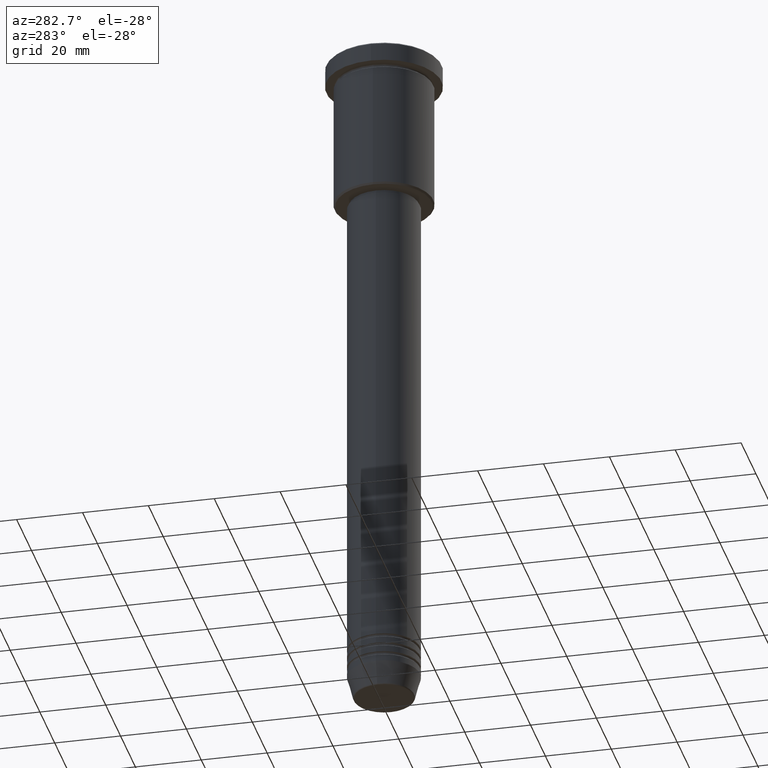
[diagram: clean part render]
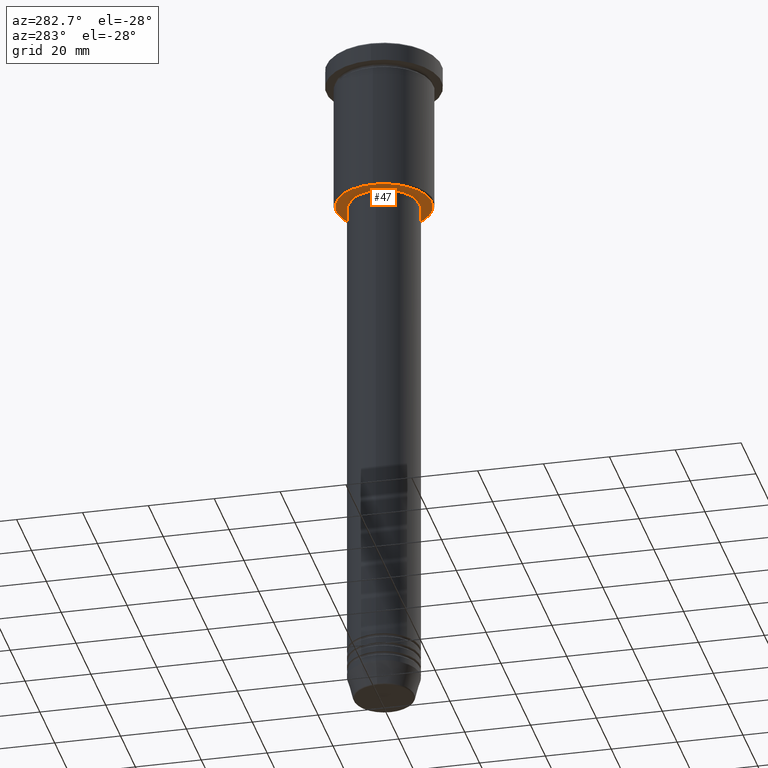
[diagram: same view with one face highlighted and labeled with its STEP entity id]
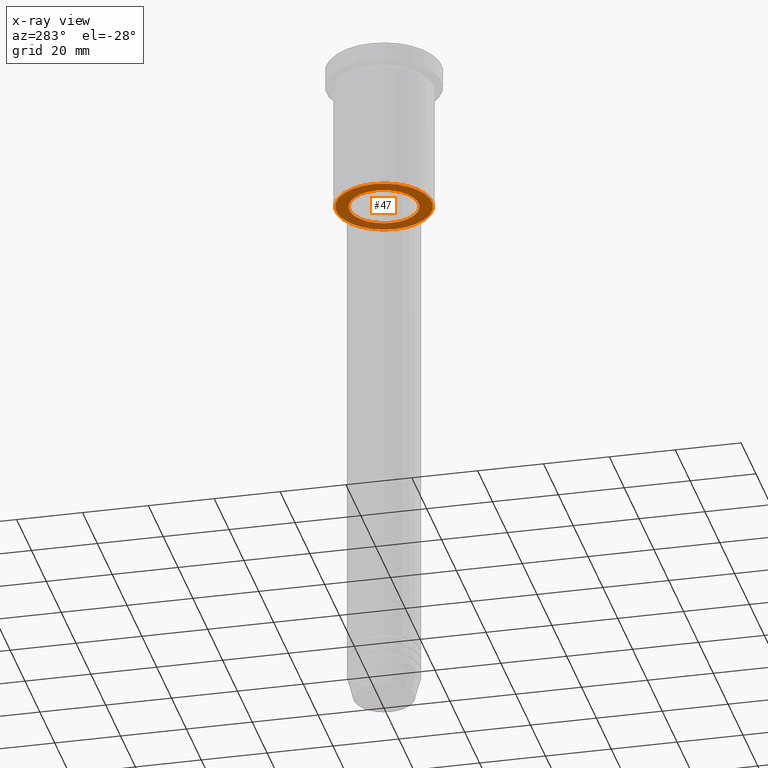
[diagram: x-ray of the same camera — body ghosted, the highlighted face saturated]
A machine part, auxiliary view. The second image highlights one B-rep face of the part: STEP entity #47.
The next image is the same camera in x-ray: the body ghosted, the highlighted face saturated — about 18% of this face is hidden behind the body in this view.
In plain terms, the highlighted planar face has unit normal (0, 0, -1).
Its self-contained STEP definition (entity closure, byte-faithful):
#25 = CARTESIAN_POINT ( 'NONE',  ( 14.49999999999998401, 0.000000000000000000, -46.00000000000001421 ) ) ;
#47 = ADVANCED_FACE ( 'NONE', ( #72, #81 ), #432, .T. ) ;
#60 = CARTESIAN_POINT ( 'NONE',  ( 0.000000000000000000, 15.00000000000000000, -46.00000000000001421 ) ) ;
#72 = FACE_OUTER_BOUND ( 'NONE', #740, .T. ) ;
#81 = FACE_BOUND ( 'NONE', #422, .T. ) ;
#130 = CIRCLE ( 'NONE', #967, 10.49999999999999822 ) ;
#248 = ORIENTED_EDGE ( 'NONE', *, *, #1132, .T. ) ;
#255 = DIRECTION ( 'NONE',  ( 1.000000000000000000, 0.000000000000000000, 0.000000000000000000 ) ) ;
#258 = VERTEX_POINT ( 'NONE', #378 ) ;
#378 = CARTESIAN_POINT ( 'NONE',  ( -10.49999999999999822, 1.285879139104720633E-15, -46.00000000000001421 ) ) ;
#422 = EDGE_LOOP ( 'NONE', ( #990, #468 ) ) ;
#432 = PLANE ( 'NONE',  #595 ) ;
#456 = ORIENTED_EDGE ( 'NONE', *, *, #971, .T. ) ;
#457 = CARTESIAN_POINT ( 'NONE',  ( 0.000000000000000000, 0.000000000000000000, -46.00000000000001421 ) ) ;
#468 = ORIENTED_EDGE ( 'NONE', *, *, #976, .T. ) ;
#493 = CARTESIAN_POINT ( 'NONE',  ( 0.000000000000000000, 0.000000000000000000, -46.00000000000001421 ) ) ;
#510 = CARTESIAN_POINT ( 'NONE',  ( -14.49999999999998401, 1.806354028742345013E-15, -46.00000000000001421 ) ) ;
#584 = AXIS2_PLACEMENT_3D ( 'NONE', #1074, #610, #726 ) ;
#585 = VERTEX_POINT ( 'NONE', #510 ) ;
#595 = AXIS2_PLACEMENT_3D ( 'NONE', #60, #706, #977 ) ;
#610 = DIRECTION ( 'NONE',  ( 0.000000000000000000, 0.000000000000000000, -1.000000000000000000 ) ) ;
#643 = DIRECTION ( 'NONE',  ( 0.000000000000000000, 0.000000000000000000, -1.000000000000000000 ) ) ;
#685 = VERTEX_POINT ( 'NONE', #1118 ) ;
#693 = VERTEX_POINT ( 'NONE', #25 ) ;
#706 = DIRECTION ( 'NONE',  ( 0.000000000000000000, 0.000000000000000000, -1.000000000000000000 ) ) ;
#707 = CARTESIAN_POINT ( 'NONE',  ( 0.000000000000000000, 0.000000000000000000, -46.00000000000001421 ) ) ;
#724 = DIRECTION ( 'NONE',  ( -1.000000000000000000, 0.000000000000000000, 0.000000000000000000 ) ) ;
#726 = DIRECTION ( 'NONE',  ( -1.000000000000000000, 0.000000000000000000, 0.000000000000000000 ) ) ;
#736 = AXIS2_PLACEMENT_3D ( 'NONE', #707, #1066, #255 ) ;
#740 = EDGE_LOOP ( 'NONE', ( #456, #248 ) ) ;
#771 = DIRECTION ( 'NONE',  ( 1.000000000000000000, 0.000000000000000000, 0.000000000000000000 ) ) ;
#828 = AXIS2_PLACEMENT_3D ( 'NONE', #457, #643, #724 ) ;
#829 = EDGE_CURVE ( 'NONE', #685, #258, #130, .T. ) ;
#856 = DIRECTION ( 'NONE',  ( -0.000000000000000000, -0.000000000000000000, 1.000000000000000000 ) ) ;
#872 = CIRCLE ( 'NONE', #584, 14.49999999999998401 ) ;
#967 = AXIS2_PLACEMENT_3D ( 'NONE', #493, #856, #771 ) ;
#971 = EDGE_CURVE ( 'NONE', #693, #585, #872, .T. ) ;
#976 = EDGE_CURVE ( 'NONE', #258, #685, #1173, .T. ) ;
#977 = DIRECTION ( 'NONE',  ( -1.000000000000000000, 0.000000000000000000, -0.000000000000000000 ) ) ;
#990 = ORIENTED_EDGE ( 'NONE', *, *, #829, .T. ) ;
#1066 = DIRECTION ( 'NONE',  ( -0.000000000000000000, -0.000000000000000000, 1.000000000000000000 ) ) ;
#1071 = CIRCLE ( 'NONE', #828, 14.49999999999998401 ) ;
#1074 = CARTESIAN_POINT ( 'NONE',  ( 0.000000000000000000, 0.000000000000000000, -46.00000000000001421 ) ) ;
#1118 = CARTESIAN_POINT ( 'NONE',  ( 10.49999999999999822, 0.000000000000000000, -46.00000000000001421 ) ) ;
#1132 = EDGE_CURVE ( 'NONE', #585, #693, #1071, .T. ) ;
#1173 = CIRCLE ( 'NONE', #736, 10.49999999999999822 ) ;